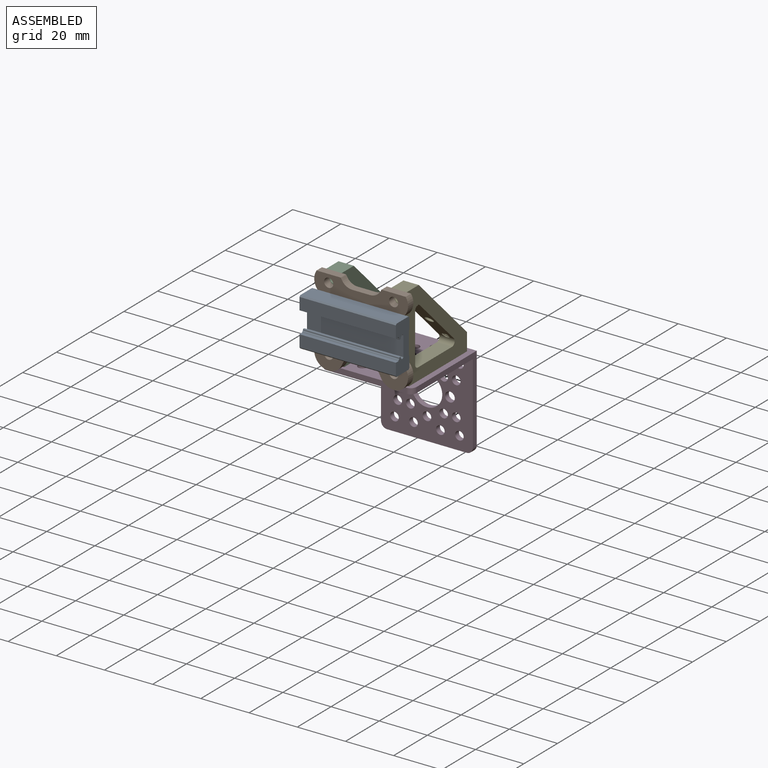
[diagram: assembled view]
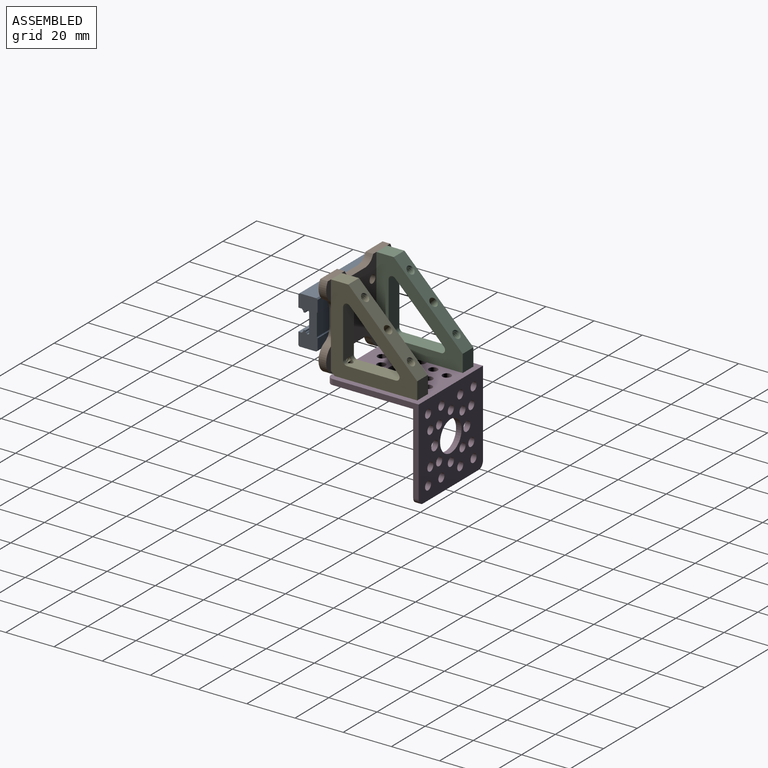
[diagram: assembled view, second angle]
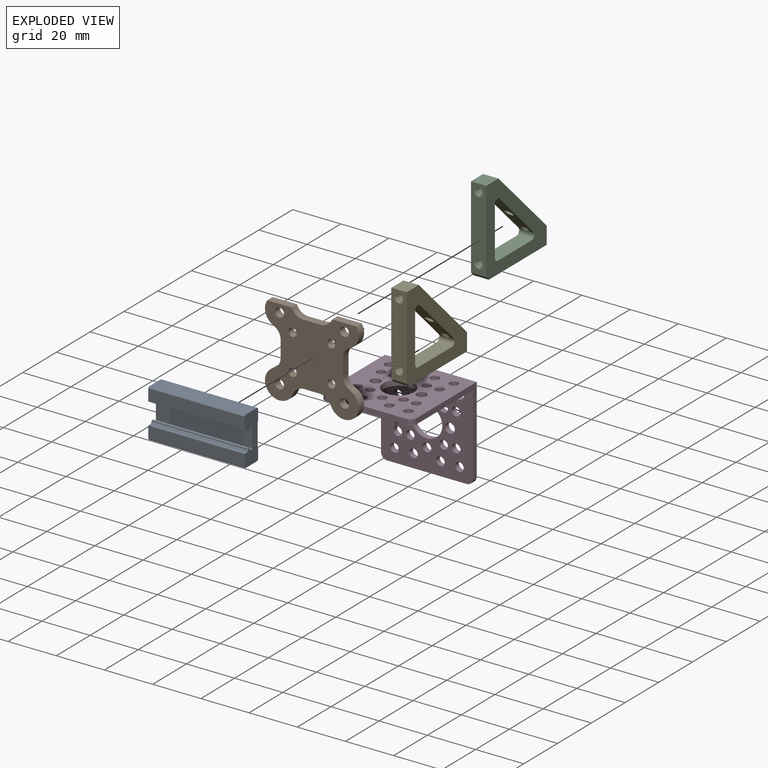
[diagram: exploded view]
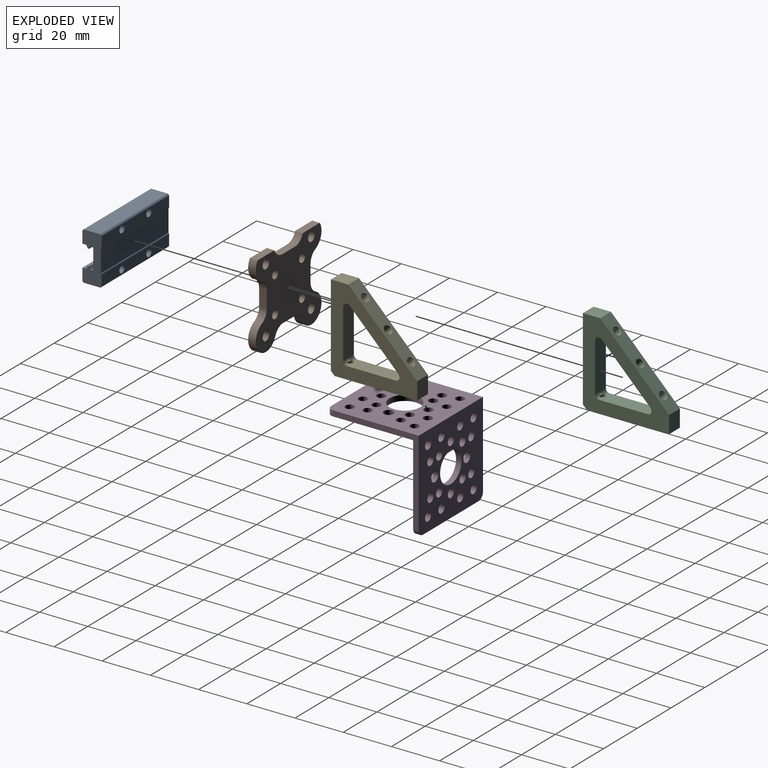
[diagram: exploded view, second angle]
ASSEMBLY  parts=5 mates=4
PART A: 56 faces, bbox 20x40x8 mm
  f0: cylinder r=0.15mm len=40mm, axis (0,1,0), area 6.8mm2, adj f1,f45,f46,f47
  f1: plane 40x1.44mm, normal (-1,0,0), area 57.7mm2, adj f0,f2,f46,f47
  f2: plane 40x5mm, normal (0,0,-1), area 200mm2, adj f1,f3,f46,f47
  f3: plane 40x0.5mm, normal (0.71,0,-0.71), area 28.3mm2, adj f2,f4,f46,f47
  f4: plane 40x7mm, normal (1,0,0), area 280mm2, adj f3,f5,f46,f47
  f5: plane 40x0.5mm, normal (0.71,0,0.71), area 28.3mm2, adj f4,f6,f46,f47
  f6: plane 40x4.6mm, normal (0,0,1), area 169.9mm2, adj f5,f7,f46,f47,f52,f54
  f7: plane 40x0.24mm, normal (-0.71,0,0.71), area 13.3mm2, adj f6,f8,f46,f47
  f8: plane 40x0.22mm, normal (-0.28,0,0.96), area 9.2mm2, adj f7,f9,f46,f47
  f9: plane 40x8.89mm, normal (0,0,1), area 355.5mm2, adj f8,f10,f46,f47
  f10: plane 40x0.22mm, normal (0.28,0,0.96), area 9.2mm2, adj f9,f11,f46,f47
  f11: plane 40x0.24mm, normal (0.71,0,0.71), area 13.3mm2, adj f10,f12,f46,f47
  f12: plane 40x4.6mm, normal (0,0,1), area 169.9mm2, adj f11,f13,f46,f47,f48,f50
  f13: plane 40x0.5mm, normal (-0.71,0,0.71), area 28.3mm2, adj f12,f14,f46,f47
  f14: plane 40x3.65mm, normal (-1,0,0), area 146.1mm2, adj f13,f15,f46,f47
  f15: plane 40x0.69mm, normal (-1,0,0), area 27.7mm2, adj f14,f16,f46,f47
  f16: plane 40x2.65mm, normal (-1,0,0), area 106.1mm2, adj f15,f17,f46,f47
  f17: plane 40x0.5mm, normal (-0.71,0,-0.71), area 28.3mm2, adj f16,f18,f46,f47
  f18: plane 40x5mm, normal (0,0,-1), area 200mm2, adj f17,f19,f46,f47
  f19: plane 40x1.44mm, normal (1,0,0), area 57.5mm2, adj f18,f20,f46,f47
  f20: cylinder r=0.15mm len=40mm, axis (0,1,0), area 7mm2, adj f19,f21,f46,f47
  f21: cylinder r=1mm len=40mm, axis (0,1,0), area 25.4mm2, adj f20,f22,f46,f47
  f22: cylinder r=0.15mm len=40mm, axis (0,1,0), area 5.7mm2, adj f21,f23,f46,f47
  f23: plane 40x0.34mm, normal (0.09,0,-1), area 13.7mm2, adj f22,f24,f46,f47
  f24: cylinder r=0.2mm len=40mm, axis (0,1,0), area 11.9mm2, adj f23,f25,f46,f47
  f25: plane 40x0.41mm, normal (1,0,0), area 16.6mm2, adj f24,f26,f46,f47
  f26: cylinder r=0.2mm len=40mm, axis (0,1,0), area 11.9mm2, adj f25,f27,f46,f47
  f27: plane 40x0.34mm, normal (0.09,0,1), area 13.7mm2, adj f26,f28,f46,f47
  f28: cylinder r=0.15mm len=40mm, axis (0,1,0), area 5.7mm2, adj f27,f29,f46,f47
  f29: cylinder r=1mm len=40mm, axis (0,1,0), area 25.4mm2, adj f28,f30,f46,f47
  f30: cylinder r=0.15mm len=40mm, axis (0,1,0), area 7mm2, adj f29,f31,f46,f47
  f31: plane 40x0.54mm, normal (1,0,0), area 21.7mm2, adj f30,f32,f46,f47
  f32: plane 40x0.4mm, normal (0.71,0,-0.71), area 22.6mm2, adj f31,f33,f46,f47
  f33: plane 40x8.2mm, normal (0,0,-1), area 328mm2, adj f32,f34,f46,f47
  f34: plane 40x0.4mm, normal (-0.71,0,-0.71), area 22.6mm2, adj f33,f35,f46,f47
  f35: plane 40x0.54mm, normal (-1,0,0), area 21.7mm2, adj f34,f36,f46,f47
  f36: cylinder r=0.15mm len=40mm, axis (0,1,0), area 7mm2, adj f35,f37,f46,f47
  f37: cylinder r=1mm len=40mm, axis (0,1,0), area 25.4mm2, adj f36,f38,f46,f47
  f38: cylinder r=0.15mm len=40mm, axis (0,1,0), area 5.7mm2, adj f37,f39,f46,f47
  f39: plane 40x0.34mm, normal (-0.09,0,1), area 13.7mm2, adj f38,f40,f46,f47
  f40: cylinder r=0.2mm len=40mm, axis (0,1,0), area 11.9mm2, adj f39,f41,f46,f47
  f41: plane 40x0.41mm, normal (-1,0,0), area 16.6mm2, adj f40,f42,f46,f47
  f42: cylinder r=0.2mm len=40mm, axis (0,1,0), area 11.9mm2, adj f41,f43,f46,f47
  f43: plane 40x0.34mm, normal (-0.09,0,-1), area 13.7mm2, adj f42,f44,f46,f47
  f44: cylinder r=0.15mm len=40mm, axis (0,1,0), area 5.7mm2, adj f43,f45,f46,f47
  f45: cylinder r=1mm len=40mm, axis (0,1,0), area 25.4mm2, adj f0,f44,f46,f47
  f46: plane 20x8mm, normal (0,-1,0), area 119.2mm2, adj f0,f1,f2,f3,f4,f5,f6,f7
  f47: plane 20x8mm, normal (0,1,0), area 119.2mm2, adj f0,f1,f2,f3,f4,f5,f6,f7
  f48: cylinder r=1.5mm len=4mm, axis (0,0,1), area 37.7mm2, adj f12,f49
  f49: plane 3x3mm, normal (0,0,1), area 7.1mm2, adj f48
  f50: cylinder r=1.5mm len=4mm, axis (0,0,1), area 37.7mm2, adj f12,f51
  f51: plane 3x3mm, normal (0,0,1), area 7.1mm2, adj f50
  f52: cylinder r=1.5mm len=4mm, axis (0,0,1), area 37.7mm2, adj f6,f53
  f53: plane 3x3mm, normal (0,0,1), area 7.1mm2, adj f52
  f54: cylinder r=1.5mm len=4mm, axis (0,0,1), area 37.7mm2, adj f6,f55
  f55: plane 3x3mm, normal (0,0,1), area 7.1mm2, adj f54
PART B: 30 faces, bbox 38.9x36.2x3.2 mm
  f0: cylinder r=5mm len=4.56mm, axis (0,0,-1), area 18.2mm2, adj f1,f27,f28,f29
  f1: cylinder r=6mm len=11.59mm, axis (0,0,-1), area 74.7mm2, adj f0,f2,f28,f29
  f2: cylinder r=5mm len=4.66mm, axis (0,0,-1), area 19mm2, adj f1,f3,f28,f29
  f3: plane 6.45x3.18mm, normal (0,-1,0), area 20.5mm2, adj f2,f4,f28,f29
  f4: cylinder r=5mm len=4.66mm, axis (0,0,-1), area 19mm2, adj f3,f5,f28,f29
  f5: cylinder r=6mm len=11.59mm, axis (0,0,-1), area 74.7mm2, adj f4,f6,f28,f29
  f6: cylinder r=5mm len=4.56mm, axis (0,0,-1), area 18.2mm2, adj f5,f7,f28,f29
  f7: plane 6.87x3.18mm, normal (1,0,0), area 21.8mm2, adj f6,f8,f28,f29
  f8: cylinder r=5mm len=4.56mm, axis (0,0,-1), area 18.2mm2, adj f7,f9,f28,f29
  f9: cylinder r=6mm len=8.77mm, axis (0,0,-1), area 33mm2, adj f8,f10,f28,f29
  f10: plane 10.03x3.18mm, normal (0,1,0), area 31.8mm2, adj f9,f11,f28,f29
  f11: cylinder r=6mm len=3.18mm, axis (0,0,-1), area 2.1mm2, adj f10,f12,f28,f29
  f12: cylinder r=5mm len=4.45mm, axis (0,0,-1), area 17.4mm2, adj f11,f13,f28,f29
  f13: plane 7.35x3.18mm, normal (0,1,0), area 23.3mm2, adj f12,f14,f28,f29
  f14: cylinder r=5mm len=4.45mm, axis (0,0,-1), area 17.4mm2, adj f13,f15,f28,f29
  f15: cylinder r=6mm len=3.18mm, axis (0,0,-1), area 2.1mm2, adj f14,f16,f28,f29
  f16: plane 10.03x3.18mm, normal (0,1,0), area 31.8mm2, adj f15,f17,f28,f29
  f17: cylinder r=6mm len=8.77mm, axis (0,0,-1), area 33mm2, adj f16,f18,f28,f29
  f18: cylinder r=5mm len=4.56mm, axis (0,0,-1), area 18.2mm2, adj f17,f27,f28,f29
  f19: cylinder r=1.7mm len=3.4mm, axis (0,0,-1), area 33.9mm2, adj f28,f29
  f20: cylinder r=1.7mm len=3.4mm, axis (0,0,-1), area 33.9mm2, adj f28,f29
  f21: cylinder r=1.7mm len=3.4mm, axis (0,0,-1), area 33.9mm2, adj f28,f29
  f22: cylinder r=1.7mm len=3.4mm, axis (0,0,-1), area 33.9mm2, adj f28,f29
  f23: cylinder r=1.9mm len=3.8mm, axis (0,0,-1), area 37.9mm2, adj f28,f29
  f24: cylinder r=1.9mm len=3.8mm, axis (0,0,-1), area 37.9mm2, adj f28,f29
  f25: cylinder r=1.9mm len=3.8mm, axis (0,0,-1), area 37.9mm2, adj f28,f29
  f26: cylinder r=1.9mm len=3.8mm, axis (0,0,-1), area 37.9mm2, adj f28,f29
  f27: plane 6.87x3.18mm, normal (-1,0,0), area 21.8mm2, adj f0,f18,f28,f29
  f28: plane 38.94x36.23mm, normal (0,0,1), area 936.6mm2, adj f0,f1,f2,f3,f4,f5,f6,f7
  f29: plane 38.94x36.23mm, normal (0,0,-1), area 936.6mm2, adj f0,f1,f2,f3,f4,f5,f6,f7
PART C: 76 faces, bbox 36.4x6.5x36.3 mm
  f0: cylinder r=1.75mm len=6.07mm, axis (-0.71,0,0.71), area 7mm2, adj f42,f50,f55,f73,f75
  f1: cylinder r=1.75mm len=4.51mm, axis (1,0,0), area 6.2mm2, adj f46,f68,f69,f70
  f2: cylinder r=1.75mm len=3.83mm, axis (1,0,0), area 5.3mm2, adj f46,f65,f66,f67
  f3: cylinder r=1.75mm len=3.8mm, axis (0,0,-1), area 5.2mm2, adj f47,f62,f63,f64
  f4: cylinder r=1.75mm len=4.51mm, axis (0,0,-1), area 6.2mm2, adj f47,f59,f60,f61
  f5: cylinder r=1.75mm len=6.07mm, axis (-0.71,0,0.71), area 7mm2, adj f42,f50,f57,f58
  f6: cylinder r=1.35mm len=5.23mm, axis (0.71,0,-0.71), area 11.7mm2, adj f41,f42,f55,f73,f75
  f7: cylinder r=1.35mm len=5.28mm, axis (0.71,0,-0.71), area 11.7mm2, adj f36,f42,f43,f57,f58
  f8: cylinder r=1.78mm len=6.11mm, axis (0.71,0,-0.71), area 56.8mm2, adj f42,f50
  f9: cylinder r=1.35mm len=2.71mm, axis (-1,0,0), area 7.9mm2, adj f10,f30,f48,f52,f54,f65,f66,f67
  f10: cylinder r=1.35mm len=2.71mm, axis (-1,0,0), area 2mm2, adj f9,f11,f66,f67
  f11: cylinder r=1.35mm len=2.71mm, axis (-1,0,0), area 2mm2, adj f10,f12,f66,f67
  f12: cylinder r=1.35mm len=2.71mm, axis (-1,0,0), area 2mm2, adj f11,f13,f66,f67
  f13: cylinder r=1.35mm len=2.71mm, axis (-1,0,0), area 2mm2, adj f12,f14,f66,f67
  f14: cylinder r=1.35mm len=2.11mm, axis (-1,0,0), area 0.4mm2, adj f13,f39,f66,f67
  f15: cylinder r=1.35mm len=2.71mm, axis (-1,0,0), area 8.5mm2, adj f16,f21,f68,f69,f70
  f16: cylinder r=1.35mm len=2.71mm, axis (-1,0,0), area 2mm2, adj f15,f17,f69,f70
  f17: cylinder r=1.35mm len=2.71mm, axis (-1,0,0), area 2mm2, adj f16,f18,f69,f70
  f18: cylinder r=1.35mm len=2.71mm, axis (-1,0,0), area 2mm2, adj f17,f19,f69,f70
  f19: cylinder r=1.35mm len=2.71mm, axis (-1,0,0), area 2mm2, adj f18,f20,f69,f70
  f20: cylinder r=1.35mm len=2.71mm, axis (-1,0,0), area 1.3mm2, adj f19,f40,f69,f70
  f21: cone r=1.35mm half-angle=59deg, axis (-1,0,0), area 6.7mm2, adj f15
  f22: cylinder r=1.35mm len=2.71mm, axis (0,0,1), area 2mm2, adj f23,f28,f60,f61
  f23: cylinder r=1.35mm len=2.71mm, axis (0,0,1), area 2mm2, adj f22,f24,f60,f61
  f24: cylinder r=1.35mm len=2.71mm, axis (0,0,1), area 2mm2, adj f23,f25,f60,f61
  f25: cylinder r=1.35mm len=2.71mm, axis (0,0,1), area 2mm2, adj f24,f26,f60,f61
  f26: cylinder r=1.35mm len=2.71mm, axis (0,0,1), area 2mm2, adj f25,f27,f60,f61
  f27: cylinder r=1.35mm len=2.19mm, axis (0,0,1), area 0.4mm2, adj f26,f37,f60,f61
  f28: cylinder r=1.35mm len=2.71mm, axis (0,0,1), area 7.4mm2, adj f22,f29,f59,f60,f61
  f29: cone r=1.35mm half-angle=59deg, axis (0,0,1), area 6.7mm2, adj f28
  f30: cylinder r=1.35mm len=2.71mm, axis (0,0,1), area 8.7mm2, adj f9,f31,f48,f53,f54,f62,f63,f64
  f31: cylinder r=1.35mm len=2.71mm, axis (0,0,1), area 2mm2, adj f30,f32,f62,f63
  f32: cylinder r=1.35mm len=2.71mm, axis (0,0,1), area 2mm2, adj f31,f33,f62,f63
  f33: cylinder r=1.35mm len=2.71mm, axis (0,0,1), area 2mm2, adj f32,f34,f62,f63
  f34: cylinder r=1.35mm len=2.71mm, axis (0,0,1), area 1.8mm2, adj f33,f35,f38,f62,f63
  f35: cylinder r=1.35mm len=0.66mm, axis (0,0,1), area 0mm2, adj f34,f38,f63
  f36: cone r=1.35mm half-angle=45deg, axis (0.71,0,-0.71), area 3.3mm2, adj f7,f50,f57,f58
  f37: cone r=1.35mm half-angle=45deg, axis (0,0,1), area 3.3mm2, adj f27,f47,f60,f61
  f38: cone r=1.35mm half-angle=45deg, axis (0,0,1), area 3.3mm2, adj f34,f35,f47,f62,f63
  f39: cone r=1.35mm half-angle=45deg, axis (-1,0,0), area 3.3mm2, adj f14,f46,f66,f67
  f40: cone r=1.35mm half-angle=45deg, axis (-1,0,0), area 3.3mm2, adj f20,f46,f69,f70
  f41: cone r=1.35mm half-angle=45deg, axis (0.71,0,-0.71), area 3.3mm2, adj f6,f50,f73,f75
  f42: plane 20.42x20.42mm, normal (-0.71,0,0.71), area 159.4mm2, adj f0,f5,f6,f7,f8,f43,f44,f45
  f43: cylinder r=1.59mm len=6.35mm, axis (0,1,0), area 23mm2, adj f7,f42,f44,f45,f52,f58
  f44: plane 35.81x35.81mm, normal (0,1,0), area 549.4mm2, adj f42,f43,f46,f47,f49,f50,f51,f52
  f45: plane 35.81x35.81mm, normal (0,-1,0), area 549.4mm2, adj f42,f43,f46,f47,f48,f49,f50,f51
  f46: plane 34.29x6.35mm, normal (-1,0,0), area 198.4mm2, adj f1,f2,f39,f40,f44,f45,f51,f56
  f47: plane 34.29x6.35mm, normal (0,0,1), area 198.4mm2, adj f3,f4,f37,f38,f44,f45,f49,f56
  f48: cylinder r=1.59mm len=2.37mm, axis (0,1,0), area 5.2mm2, adj f9,f30,f45,f52,f53
  f49: plane 7.18x6.35mm, normal (1,0,0), area 45.6mm2, adj f44,f45,f47,f50
  f50: plane 28.63x28.63mm, normal (0.71,0,-0.71), area 227.9mm2, adj f0,f5,f8,f36,f41,f44,f45,f49
  f51: plane 7.18x6.35mm, normal (0,0,-1), area 45.6mm2, adj f44,f45,f46,f50
  f52: plane 20.23x6.35mm, normal (1,0,0), area 128.2mm2, adj f9,f43,f44,f45,f48,f54
  f53: plane 20.23x6.35mm, normal (0,0,-1), area 128.2mm2, adj f30,f44,f45,f48,f54,f55
  f54: cylinder r=1.59mm len=2.37mm, axis (0,1,0), area 5.2mm2, adj f9,f30,f44,f52,f53
  f55: cylinder r=1.59mm len=6.35mm, axis (0,1,0), area 22mm2, adj f0,f6,f42,f44,f45,f53,f71,f72
  f56: plane 6.35x1.52mm, normal (-0.71,0,0.71), area 13.7mm2, adj f44,f45,f46,f47
  f57: bspline ~6.51x5.95mm, area 27.8mm2, adj f5,f7,f36,f42
  f58: bspline ~5.95x5.95mm, area 28mm2, adj f5,f7,f36,f42,f43
  f59: cone r=0.98mm half-angle=55deg, axis (0,0,1), area 1.9mm2, adj f4,f28,f60,f61
  f60: bspline ~5.41x4.05mm, area 25.3mm2, adj f4,f22,f23,f24,f25,f26,f27,f28
  f61: bspline ~4.79x3.5mm, area 25.3mm2, adj f4,f22,f23,f24,f25,f26,f27,f28
  f62: bspline ~4.08x3.5mm, area 21.3mm2, adj f3,f30,f31,f32,f33,f34,f38,f64
  f63: bspline ~4.54x3.47mm, area 21.3mm2, adj f3,f30,f31,f32,f33,f34,f35,f38
  f64: cone r=0.98mm half-angle=55deg, axis (0,0,1), area 1.9mm2, adj f3,f30,f62,f63
  f65: cone r=0.98mm half-angle=55deg, axis (-1,0,0), area 1.9mm2, adj f2,f9,f66,f67
  f66: bspline ~4.75x4.04mm, area 21.5mm2, adj f2,f9,f10,f11,f12,f13,f14,f39
  f67: bspline ~4.11x3.49mm, area 21.5mm2, adj f2,f9,f10,f11,f12,f13,f14,f39
  f68: cone r=0.98mm half-angle=55deg, axis (-1,0,0), area 1.9mm2, adj f1,f15,f69,f70
  f69: bspline ~5.25x3.5mm, area 25.3mm2, adj f1,f15,f16,f17,f18,f19,f20,f40
  f70: bspline ~4.79x3.5mm, area 25.3mm2, adj f1,f15,f16,f17,f18,f19,f20,f40
  f71: cone r=0.98mm half-angle=55deg, axis (0.71,0,-0.71), area 0mm2, adj f55,f72,f74
  f72: cylinder r=1.75mm len=2.13mm, axis (-0.71,0,0.71), area 0.1mm2, adj f55,f71,f73,f74
  f73: bspline ~6.04x5.46mm, area 28.4mm2, adj f0,f6,f41,f55,f72
  f74: cylinder r=3.23mm len=0.48mm, axis (0.92,-0.33,0.21), area 0mm2, adj f55,f71,f72
  f75: bspline ~5.76x5.76mm, area 27.8mm2, adj f0,f6,f41,f42
PART D: 54 faces, bbox 38.1x38.1x38.1 mm
  f0: cylinder r=1.78mm len=3.56mm, axis (0,-1,0), area 25.5mm2, adj f46,f47
  f1: cylinder r=1.78mm len=3.56mm, axis (0,-1,0), area 25.5mm2, adj f46,f47
  f2: cylinder r=1.78mm len=3.56mm, axis (0,-1,0), area 25.5mm2, adj f46,f47
  f3: cylinder r=1.78mm len=3.56mm, axis (0,-1,0), area 25.5mm2, adj f46,f47
  f4: cylinder r=1.78mm len=3.56mm, axis (0,-1,0), area 25.5mm2, adj f46,f47
  f5: cylinder r=1.78mm len=3.56mm, axis (0,-1,0), area 25.5mm2, adj f46,f47
  f6: cylinder r=1.78mm len=3.56mm, axis (0,-1,0), area 25.5mm2, adj f46,f47
  f7: cylinder r=1.78mm len=3.56mm, axis (0,-1,0), area 25.5mm2, adj f46,f47
  f8: cylinder r=1.78mm len=3.56mm, axis (0,0,1), area 25.5mm2, adj f42,f48
  f9: cylinder r=1.78mm len=3.56mm, axis (0,0,1), area 25.5mm2, adj f42,f48
  f10: cylinder r=1.78mm len=3.56mm, axis (0,0,1), area 25.5mm2, adj f42,f48
  f11: cylinder r=1.78mm len=3.56mm, axis (0,0,1), area 25.5mm2, adj f42,f48
  f12: cylinder r=1.78mm len=3.56mm, axis (0,0,1), area 25.5mm2, adj f42,f48
  f13: cylinder r=1.78mm len=3.56mm, axis (0,0,1), area 25.5mm2, adj f42,f48
  f14: cylinder r=1.78mm len=3.56mm, axis (0,0,1), area 25.5mm2, adj f42,f48
  f15: cylinder r=1.78mm len=3.56mm, axis (0,0,1), area 25.5mm2, adj f42,f48
  f16: cylinder r=1.78mm len=3.56mm, axis (0,0,1), area 25.5mm2, adj f42,f48
  f17: cylinder r=1.78mm len=3.56mm, axis (0,0,1), area 25.5mm2, adj f42,f48
  f18: cylinder r=1.78mm len=3.56mm, axis (0,0,1), area 25.5mm2, adj f42,f48
  f19: cylinder r=1.78mm len=3.56mm, axis (0,0,1), area 25.5mm2, adj f42,f48
  f20: cylinder r=1.78mm len=3.56mm, axis (0,-1,0), area 25.5mm2, adj f46,f47
  f21: cylinder r=1.78mm len=3.56mm, axis (0,-1,0), area 25.5mm2, adj f46,f47
  f22: cylinder r=1.78mm len=3.56mm, axis (0,-1,0), area 25.5mm2, adj f46,f47
  f23: cylinder r=1.78mm len=3.56mm, axis (0,-1,0), area 25.5mm2, adj f46,f47
  f24: cylinder r=2.03mm len=4.06mm, axis (0,-1,0), area 29.2mm2, adj f46,f47
  f25: cylinder r=2.03mm len=4.06mm, axis (0,-1,0), area 29.2mm2, adj f46,f47
  f26: cylinder r=2.03mm len=4.06mm, axis (0,0,1), area 29.2mm2, adj f42,f48
  f27: cylinder r=2.03mm len=4.06mm, axis (0,0,1), area 29.2mm2, adj f42,f48
  f28: cylinder r=1.78mm len=3.56mm, axis (0,0,1), area 25.5mm2, adj f42,f48
  f29: cylinder r=1.78mm len=3.56mm, axis (0,0,1), area 25.5mm2, adj f42,f48
  f30: cylinder r=1.78mm len=3.56mm, axis (0,0,1), area 25.5mm2, adj f42,f48
  f31: cylinder r=1.78mm len=3.56mm, axis (0,0,1), area 25.5mm2, adj f42,f48
  f32: cylinder r=1.78mm len=3.56mm, axis (0,0,1), area 25.5mm2, adj f42,f48
  f33: cylinder r=1.78mm len=3.56mm, axis (0,0,1), area 25.5mm2, adj f42,f48
  f34: cylinder r=1.78mm len=3.56mm, axis (0,-1,0), area 25.5mm2, adj f46,f47
  f35: cylinder r=1.78mm len=3.56mm, axis (0,-1,0), area 25.5mm2, adj f46,f47
  f36: cylinder r=1.78mm len=3.56mm, axis (0,-1,0), area 25.5mm2, adj f46,f47
  f37: cylinder r=1.78mm len=3.56mm, axis (0,-1,0), area 25.5mm2, adj f46,f47
  f38: cylinder r=1.78mm len=3.56mm, axis (0,-1,0), area 25.5mm2, adj f46,f47
  f39: cylinder r=1.78mm len=3.56mm, axis (0,-1,0), area 25.5mm2, adj f46,f47
  f40: cylinder r=6.36mm len=12.73mm, axis (0,-1,0), area 91.4mm2, adj f46,f47
  f41: cylinder r=6.36mm len=12.73mm, axis (0,0,1), area 91.4mm2, adj f42,f48
  f42: plane 38.1x38.1mm, normal (0,0,1), area 1116.9mm2, adj f8,f9,f10,f11,f12,f13,f14,f15
  f43: plane 35.56x35.56mm, normal (1,0,0), area 157.4mm2, adj f42,f46,f47,f48,f50,f53
  f44: plane 33.02x2.29mm, normal (0,0,-1), area 75.5mm2, adj f46,f47,f50,f51
  f45: plane 35.56x35.56mm, normal (-1,0,0), area 157.4mm2, adj f42,f46,f47,f48,f51,f52
  f46: plane 38.1x35.81mm, normal (0,1,0), area 1029.9mm2, adj f0,f1,f2,f3,f4,f5,f6,f7
  f47: plane 38.1x38.1mm, normal (0,-1,0), area 1116.9mm2, adj f0,f1,f2,f3,f4,f5,f6,f7
  f48: plane 38.1x35.81mm, normal (0,0,-1), area 1029.9mm2, adj f8,f9,f10,f11,f12,f13,f14,f15
  f49: plane 33.02x2.29mm, normal (0,1,0), area 75.5mm2, adj f42,f48,f52,f53
  f50: cylinder r=2.54mm len=2.54mm, axis (0,-1,0), area 9.1mm2, adj f43,f44,f46,f47
  f51: cylinder r=2.54mm len=2.54mm, axis (0,-1,0), area 9.1mm2, adj f44,f45,f46,f47
  f52: cylinder r=2.54mm len=2.54mm, axis (0,0,-1), area 9.1mm2, adj f42,f45,f48,f49
  f53: cylinder r=2.54mm len=2.54mm, axis (0,0,-1), area 9.1mm2, adj f42,f43,f48,f49
PART E: same geometry as C
PLACE A rot(axis=(-0.58,-0.58,-0.58),120deg) t=(20.35,-12.39,5.59)mm
PLACE B rot(axis=(1,0,0),90deg) t=(-7.65,-5.22,13.09)mm
PLACE C rot(axis=(0.58,-0.58,0.58),120deg) t=(-9.94,-5.22,-13.46)mm
PLACE D rot(axis=(0,0,1),180deg) t=(0.35,32.88,-32.51)mm
PLACE E rot(axis=(0.58,-0.58,0.58),120deg) t=(17,-5.22,-13.46)mm
MATE fastened C.f4 <-> B.f15  axis (0,-1,0) through (-13.12,-5.22,19.06)mm
MATE fastened D.f18 <-> E.f65  axis (0,0,1) through (13.83,0.36,-13.46)mm
MATE fastened A.f52 <-> B.f20  axis (0,1,0) through (8.35,-8.39,13.09)mm
MATE fastened E.f4 <-> B.f9  axis (0,1,0) through (13.83,-5.22,19.06)mm
